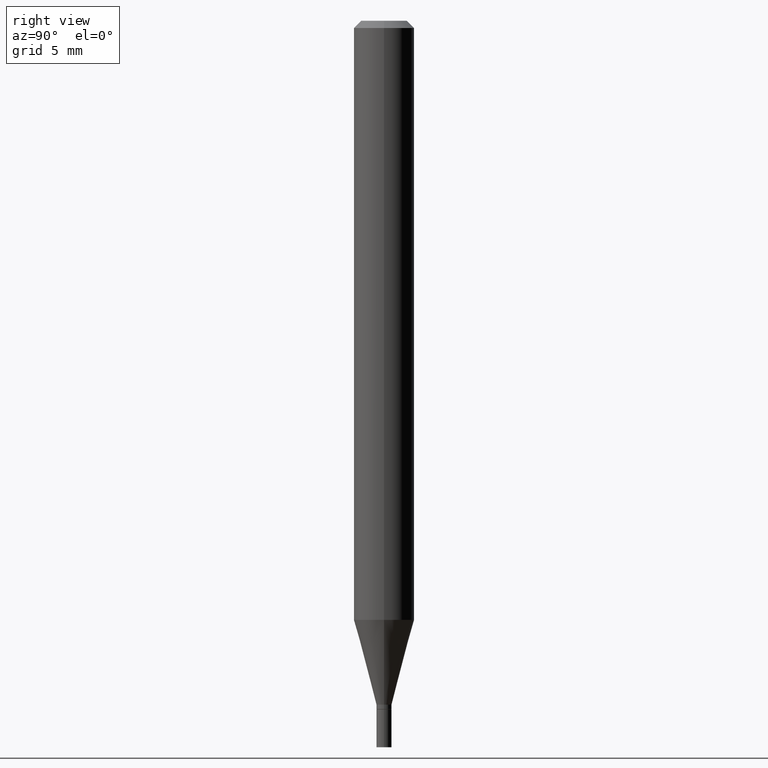
[diagram: clean part render]
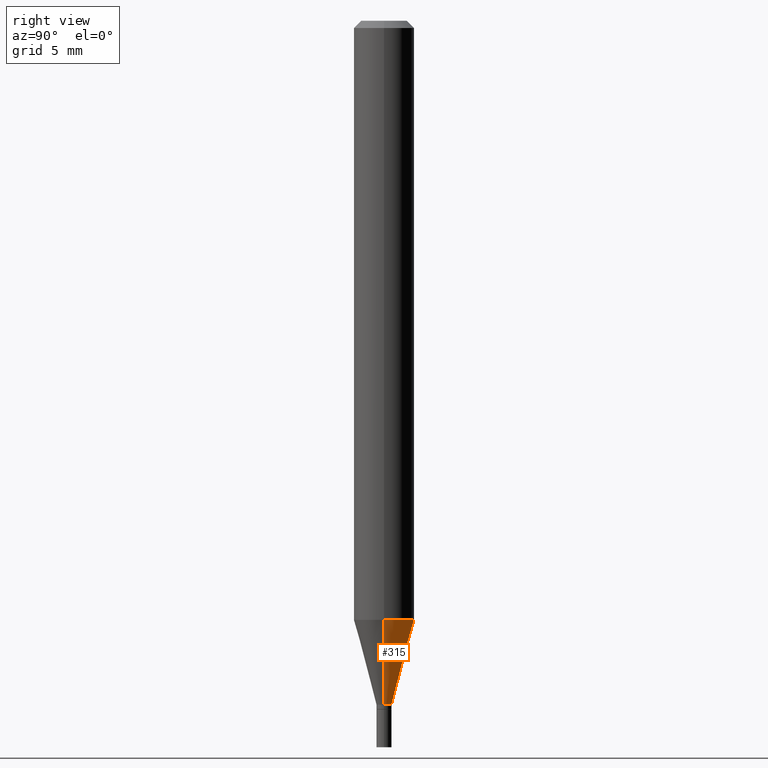
[diagram: same view with one face highlighted and labeled with its STEP entity id]
A machine part, right view. The second image highlights one B-rep face of the part: STEP entity #315.
In plain terms, the highlighted conical surface has half-angle 15 deg.
Its self-contained STEP definition (entity closure, byte-faithful):
#6 = AXIS2_PLACEMENT_3D ( 'NONE', #185, #246, #406 ) ;
#9 = ORIENTED_EDGE ( 'NONE', *, *, #210, .T. ) ;
#42 = DIRECTION ( 'NONE',  ( -0.2588190451025215166, 5.211531920934551042E-15, 0.9659258262890679791 ) ) ;
#62 = EDGE_CURVE ( 'NONE', #380, #218, #97, .T. ) ;
#75 = CARTESIAN_POINT ( 'NONE',  ( 0.06250000000000000000, -4.755281726115601490E-15, -1.236966817125020102 ) ) ;
#77 = CARTESIAN_POINT ( 'NONE',  ( -0.01559999999999992816, -4.819126983667946462E-15, -1.412000000000000144 ) ) ;
#86 = DIRECTION ( 'NONE',  ( 1.000000000000000000, -6.982962677686252511E-15, 0.000000000000000000 ) ) ;
#91 = CARTESIAN_POINT ( 'NONE',  ( 0.01559999999999992816, -5.038905868218426694E-15, -1.412000000000000144 ) ) ;
#97 = LINE ( 'NONE', #336, #184 ) ;
#113 = CIRCLE ( 'NONE', #386, 0.01559999999999992816 ) ;
#115 = CARTESIAN_POINT ( 'NONE',  ( -0.01559999999999992816, -4.346942166289046833E-15, -1.412000000000000144 ) ) ;
#151 = CARTESIAN_POINT ( 'NONE',  ( 3.453001954333413314E-29, -4.929971650446521716E-15, -1.412000000000000144 ) ) ;
#182 = CARTESIAN_POINT ( 'NONE',  ( -0.06250000000000000000, -3.874757348910146415E-15, -1.236966817125020102 ) ) ;
#184 = VECTOR ( 'NONE', #307, 39.37007874015748143 ) ;
#185 = CARTESIAN_POINT ( 'NONE',  ( 3.024963765565350895E-29, -4.318846558760209820E-15, -1.236966817125020102 ) ) ;
#210 = EDGE_CURVE ( 'NONE', #220, #263, #443, .T. ) ;
#213 = VECTOR ( 'NONE', #42, 39.37007874015748143 ) ;
#218 = VERTEX_POINT ( 'NONE', #75 ) ;
#220 = VERTEX_POINT ( 'NONE', #115 ) ;
#234 = ORIENTED_EDGE ( 'NONE', *, *, #361, .T. ) ;
#241 = CIRCLE ( 'NONE', #6, 0.06250000000000000000 ) ;
#246 = DIRECTION ( 'NONE',  ( -2.445468806185136597E-29, 3.491481338843145583E-15, 1.000000000000000000 ) ) ;
#258 = EDGE_LOOP ( 'NONE', ( #234, #9, #419, #391 ) ) ;
#263 = VERTEX_POINT ( 'NONE', #182 ) ;
#269 = CARTESIAN_POINT ( 'NONE',  ( 3.453001954333413314E-29, -4.929971650446521716E-15, -1.412000000000000144 ) ) ;
#292 = DIRECTION ( 'NONE',  ( -2.445468806185136597E-29, 3.491481338843145583E-15, 1.000000000000000000 ) ) ;
#300 = EDGE_CURVE ( 'NONE', #218, #263, #241, .T. ) ;
#307 = DIRECTION ( 'NONE',  ( 0.2588190451025215166, 1.565188264969620784E-15, 0.9659258262890679791 ) ) ;
#315 = ADVANCED_FACE ( 'NONE', ( #327 ), #372, .T. ) ;
#327 = FACE_OUTER_BOUND ( 'NONE', #258, .T. ) ;
#336 = CARTESIAN_POINT ( 'NONE',  ( 0.01559999999999992816, -5.038905868218426694E-15, -1.412000000000000144 ) ) ;
#361 = EDGE_CURVE ( 'NONE', #380, #220, #113, .T. ) ;
#372 = CONICAL_SURFACE ( 'NONE', #396, 0.01559999999999992816, 0.2617993877991502405 ) ;
#380 = VERTEX_POINT ( 'NONE', #91 ) ;
#386 = AXIS2_PLACEMENT_3D ( 'NONE', #269, #451, #86 ) ;
#391 = ORIENTED_EDGE ( 'NONE', *, *, #62, .F. ) ;
#396 = AXIS2_PLACEMENT_3D ( 'NONE', #151, #292, #445 ) ;
#406 = DIRECTION ( 'NONE',  ( 1.000000000000000000, -6.982962677686262766E-15, 0.000000000000000000 ) ) ;
#419 = ORIENTED_EDGE ( 'NONE', *, *, #300, .F. ) ;
#443 = LINE ( 'NONE', #77, #213 ) ;
#445 = DIRECTION ( 'NONE',  ( 1.000000000000000000, -6.982962677686252511E-15, 0.000000000000000000 ) ) ;
#451 = DIRECTION ( 'NONE',  ( -2.445468806185136597E-29, 3.491481338843145583E-15, 1.000000000000000000 ) ) ;